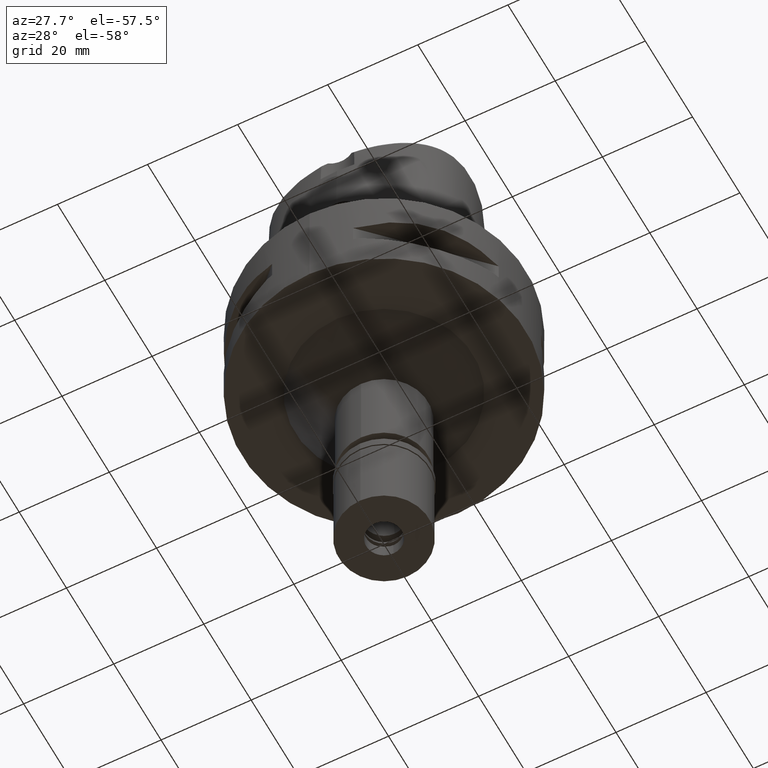
[diagram: clean part render]
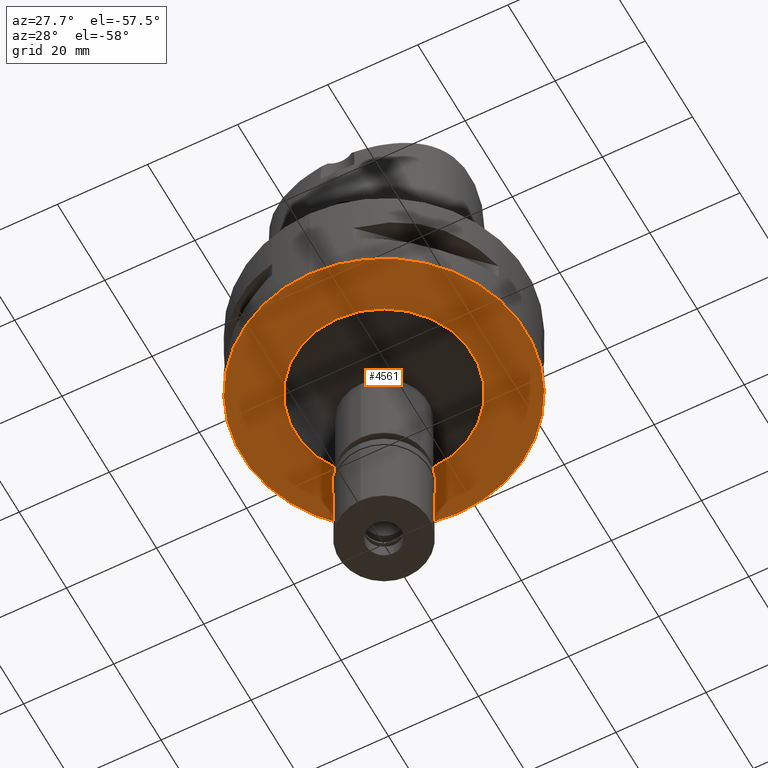
[diagram: same view with one face highlighted and labeled with its STEP entity id]
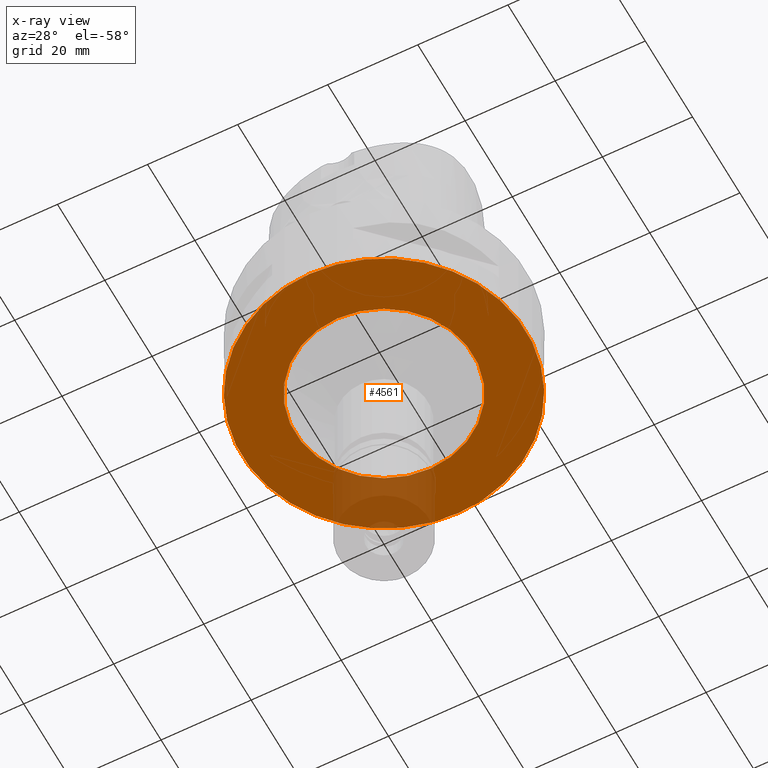
[diagram: x-ray of the same camera — body ghosted, the highlighted face saturated]
A machine part, auxiliary view. The second image highlights one B-rep face of the part: STEP entity #4561.
The next image is the same camera in x-ray: the body ghosted, the highlighted face saturated — about 13% of this face is hidden behind the body in this view.
In plain terms, the highlighted planar face has unit normal (0, 0, -1).
Its self-contained STEP definition (entity closure, byte-faithful):
#206 = VERTEX_POINT ( 'NONE', #2706 ) ;
#341 = EDGE_LOOP ( 'NONE', ( #4172, #3248 ) ) ;
#442 = EDGE_LOOP ( 'NONE', ( #2401, #604 ) ) ;
#604 = ORIENTED_EDGE ( 'NONE', *, *, #3886, .F. ) ;
#644 = DIRECTION ( 'NONE',  ( 0.0000000000000000000, 1.000000000000000000, 0.0000000000000000000 ) ) ;
#985 = DIRECTION ( 'NONE',  ( 0.0000000000000000000, 0.0000000000000000000, -1.000000000000000000 ) ) ;
#1092 = EDGE_CURVE ( 'NONE', #3755, #206, #1998, .T. ) ;
#1527 = CARTESIAN_POINT ( 'NONE',  ( 0.0000000000000000000, 31.50000000000000000, -22.00000000000000000 ) ) ;
#1551 = DIRECTION ( 'NONE',  ( 0.0000000000000000000, -1.000000000000000000, 0.0000000000000000000 ) ) ;
#1561 = CARTESIAN_POINT ( 'NONE',  ( 0.0000000000000000000, -19.75000000000000000, -22.00000000000000000 ) ) ;
#1662 = DIRECTION ( 'NONE',  ( 0.0000000000000000000, -1.000000000000000000, 0.0000000000000000000 ) ) ;
#1683 = VERTEX_POINT ( 'NONE', #3374 ) ;
#1734 = EDGE_CURVE ( 'NONE', #4599, #1683, #1839, .T. ) ;
#1839 = CIRCLE ( 'NONE', #2231, 19.75000000000000000 ) ;
#1998 = CIRCLE ( 'NONE', #4434, 31.50000000000000000 ) ;
#2231 = AXIS2_PLACEMENT_3D ( 'NONE', #2478, #2378, #1662 ) ;
#2286 = DIRECTION ( 'NONE',  ( 0.0000000000000000000, 0.0000000000000000000, 1.000000000000000000 ) ) ;
#2303 = AXIS2_PLACEMENT_3D ( 'NONE', #3050, #2286, #1551 ) ;
#2378 = DIRECTION ( 'NONE',  ( 0.0000000000000000000, 0.0000000000000000000, -1.000000000000000000 ) ) ;
#2401 = ORIENTED_EDGE ( 'NONE', *, *, #1092, .F. ) ;
#2433 = DIRECTION ( 'NONE',  ( 0.0000000000000000000, 0.0000000000000000000, -1.000000000000000000 ) ) ;
#2478 = CARTESIAN_POINT ( 'NONE',  ( 0.0000000000000000000, 0.0000000000000000000, -22.00000000000000000 ) ) ;
#2498 = DIRECTION ( 'NONE',  ( 0.0000000000000000000, 0.0000000000000000000, 1.000000000000000000 ) ) ;
#2529 = CARTESIAN_POINT ( 'NONE',  ( 0.0000000000000000000, 0.0000000000000000000, -22.00000000000000000 ) ) ;
#2646 = AXIS2_PLACEMENT_3D ( 'NONE', #4551, #2433, #3084 ) ;
#2706 = CARTESIAN_POINT ( 'NONE',  ( 0.0000000000000000000, -31.50000000000000000, -22.00000000000000000 ) ) ;
#2798 = FACE_OUTER_BOUND ( 'NONE', #442, .T. ) ;
#3037 = CIRCLE ( 'NONE', #3598, 19.75000000000000000 ) ;
#3050 = CARTESIAN_POINT ( 'NONE',  ( 0.0000000000000000000, 0.0000000000000000000, -22.00000000000000000 ) ) ;
#3084 = DIRECTION ( 'NONE',  ( 0.0000000000000000000, -1.000000000000000000, 0.0000000000000000000 ) ) ;
#3248 = ORIENTED_EDGE ( 'NONE', *, *, #1734, .F. ) ;
#3374 = CARTESIAN_POINT ( 'NONE',  ( 0.0000000000000000000, 19.75000000000000000, -22.00000000000000000 ) ) ;
#3482 = FACE_BOUND ( 'NONE', #341, .T. ) ;
#3598 = AXIS2_PLACEMENT_3D ( 'NONE', #2529, #985, #644 ) ;
#3755 = VERTEX_POINT ( 'NONE', #1527 ) ;
#3886 = EDGE_CURVE ( 'NONE', #206, #3755, #4572, .T. ) ;
#3991 = DIRECTION ( 'NONE',  ( 0.0000000000000000000, 1.000000000000000000, 0.0000000000000000000 ) ) ;
#4172 = ORIENTED_EDGE ( 'NONE', *, *, #4701, .F. ) ;
#4284 = PLANE ( 'NONE',  #2646 ) ;
#4405 = CARTESIAN_POINT ( 'NONE',  ( 0.0000000000000000000, 0.0000000000000000000, -22.00000000000000000 ) ) ;
#4434 = AXIS2_PLACEMENT_3D ( 'NONE', #4405, #2498, #3991 ) ;
#4551 = CARTESIAN_POINT ( 'NONE',  ( 0.0000000000000000000, 0.0000000000000000000, -22.00000000000000000 ) ) ;
#4561 = ADVANCED_FACE ( 'NONE', ( #2798, #3482 ), #4284, .T. ) ;
#4572 = CIRCLE ( 'NONE', #2303, 31.50000000000000000 ) ;
#4599 = VERTEX_POINT ( 'NONE', #1561 ) ;
#4701 = EDGE_CURVE ( 'NONE', #1683, #4599, #3037, .T. ) ;